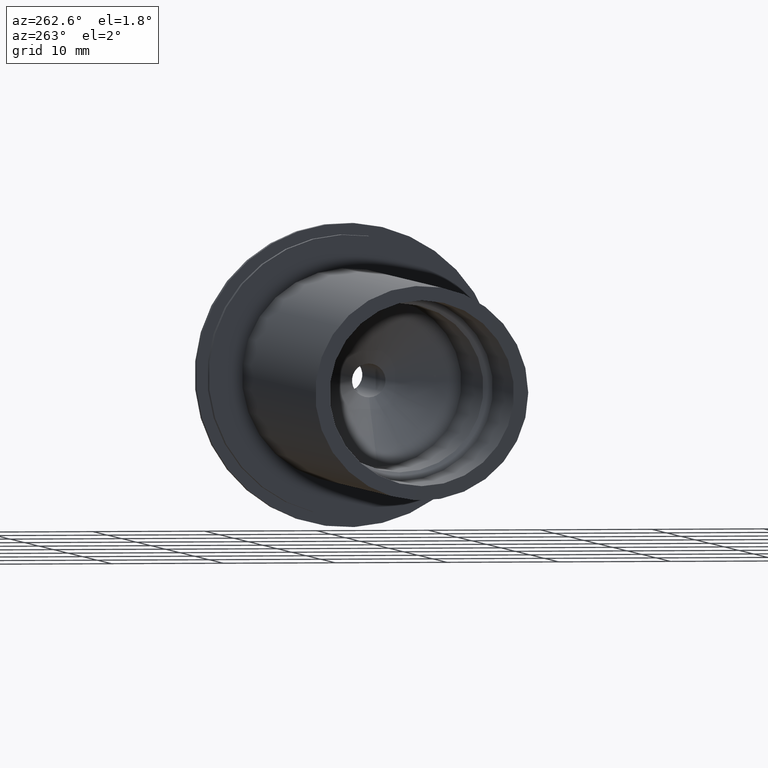
[diagram: clean part render]
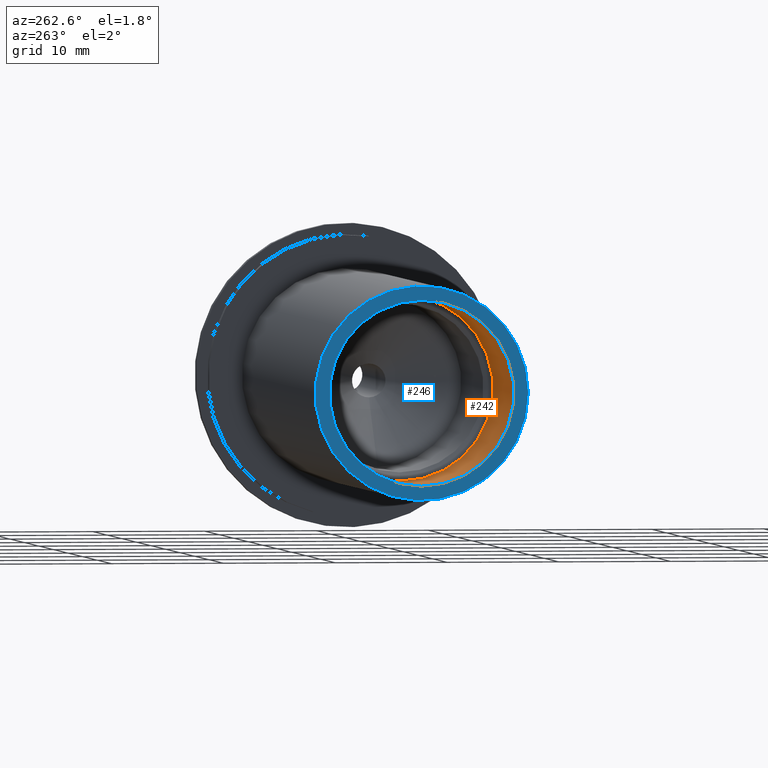
[diagram: same view with the hole feature highlighted: cylindrical wall and planar end face, labeled with their STEP entity ids]
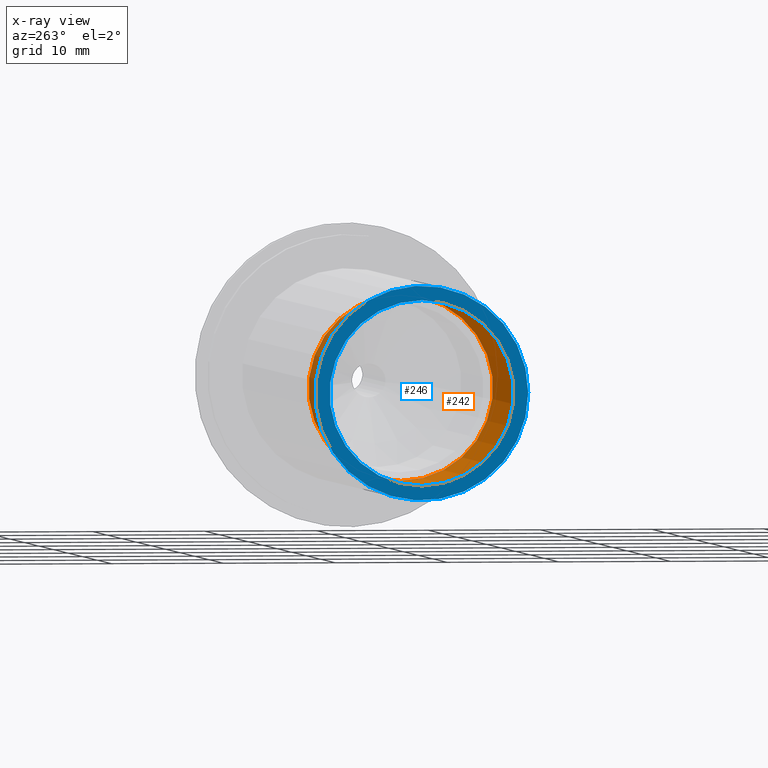
[diagram: x-ray of the same camera — body ghosted, the hole faces saturated]
A machine part, auxiliary view. The highlighted faces form one hole feature of diameter 16.5 mm: the cylindrical wall (entity #242, orange) and its adjacent planar end face (entity #246, blue) — they share a circular edge in the B-rep.
The next image is the same camera in x-ray (body ghosted, the hole faces saturated) — the bore reads through the body.
Wall:
#100=FACE_OUTER_BOUND('',#112,.T.);
#112=EDGE_LOOP('',(#208,#209,#210,#211));
#128=LINE('',#430,#136);
#136=VECTOR('',#344,8.25);
#145=CIRCLE('',#282,8.25);
#146=CIRCLE('',#284,8.25);
#161=VERTEX_POINT('',#424);
#162=VERTEX_POINT('',#428);
#177=EDGE_CURVE('',#161,#161,#145,.T.);
#179=EDGE_CURVE('',#162,#162,#146,.T.);
#180=EDGE_CURVE('',#162,#161,#128,.T.);
#208=ORIENTED_EDGE('',*,*,#179,.F.);
#209=ORIENTED_EDGE('',*,*,#180,.T.);
#210=ORIENTED_EDGE('',*,*,#177,.F.);
#211=ORIENTED_EDGE('',*,*,#180,.F.);
#234=CYLINDRICAL_SURFACE('',#283,8.25);
#242=ADVANCED_FACE('',(#100),#234,.F.);
#282=AXIS2_PLACEMENT_3D('',#425,#337,#338);
#283=AXIS2_PLACEMENT_3D('',#427,#340,#341);
#284=AXIS2_PLACEMENT_3D('',#429,#342,#343);
#337=DIRECTION('center_axis',(-1.,0.,0.));
#338=DIRECTION('ref_axis',(0.,0.,1.));
#340=DIRECTION('center_axis',(-1.,0.,0.));
#341=DIRECTION('ref_axis',(0.,0.,1.));
#342=DIRECTION('center_axis',(1.,0.,0.));
#343=DIRECTION('ref_axis',(0.,0.,1.));
#344=DIRECTION('',(1.,0.,0.));
#424=CARTESIAN_POINT('',(-38.,-1.01033360929657E-15,-8.25));
#425=CARTESIAN_POINT('Origin',(-38.,0.,0.));
#427=CARTESIAN_POINT('Origin',(-45.25,0.,0.));
#428=CARTESIAN_POINT('',(-52.5,-1.01033360929657E-15,-8.25));
#429=CARTESIAN_POINT('Origin',(-52.5,0.,0.));
#430=CARTESIAN_POINT('',(-45.25,-1.01033360929657E-15,-8.25));
End face:
#88=FACE_BOUND('',#119,.T.);
#92=PLANE('',#291);
#104=FACE_OUTER_BOUND('',#118,.T.);
#118=EDGE_LOOP('',(#220));
#119=EDGE_LOOP('',(#221));
#146=CIRCLE('',#284,8.25);
#150=CIRCLE('',#292,9.525);
#162=VERTEX_POINT('',#428);
#166=VERTEX_POINT('',#442);
#179=EDGE_CURVE('',#162,#162,#146,.T.);
#185=EDGE_CURVE('',#166,#166,#150,.T.);
#220=ORIENTED_EDGE('',*,*,#185,.F.);
#221=ORIENTED_EDGE('',*,*,#179,.T.);
#246=ADVANCED_FACE('',(#104,#88),#92,.T.);
#284=AXIS2_PLACEMENT_3D('',#429,#342,#343);
#291=AXIS2_PLACEMENT_3D('',#441,#358,#359);
#292=AXIS2_PLACEMENT_3D('',#443,#360,#361);
#342=DIRECTION('center_axis',(1.,0.,0.));
#343=DIRECTION('ref_axis',(0.,0.,1.));
#358=DIRECTION('center_axis',(-1.,0.,0.));
#359=DIRECTION('ref_axis',(0.,0.,1.));
#360=DIRECTION('center_axis',(1.,0.,0.));
#361=DIRECTION('ref_axis',(0.,0.,-1.));
#428=CARTESIAN_POINT('',(-52.5,-1.01033360929657E-15,-8.25));
#429=CARTESIAN_POINT('Origin',(-52.5,0.,0.));
#441=CARTESIAN_POINT('Origin',(-52.5,9.525,0.));
#442=CARTESIAN_POINT('',(-52.5,-9.525,-1.16647607618785E-15));
#443=CARTESIAN_POINT('Origin',(-52.5,0.,0.));